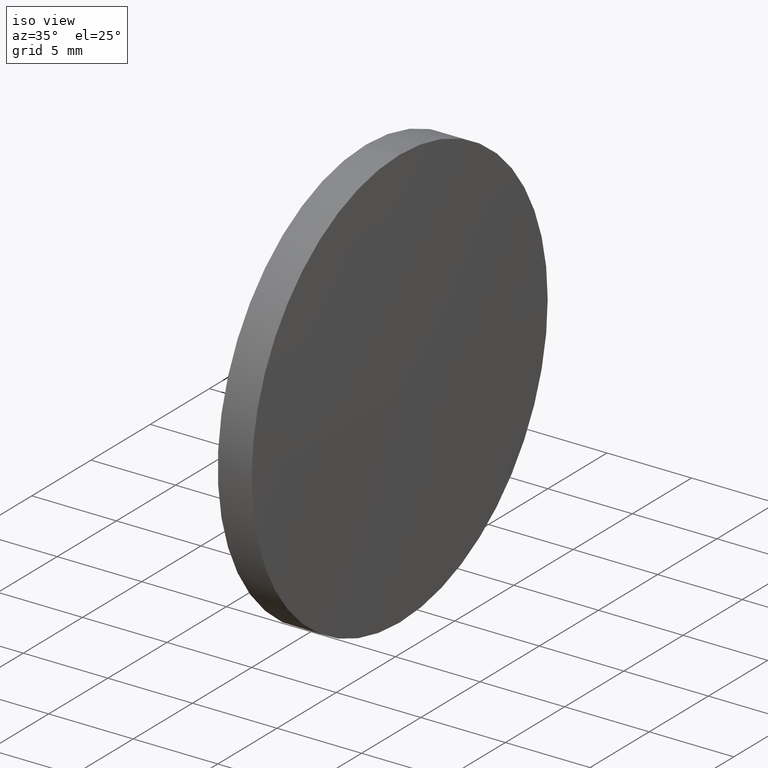
[diagram: clean part render]
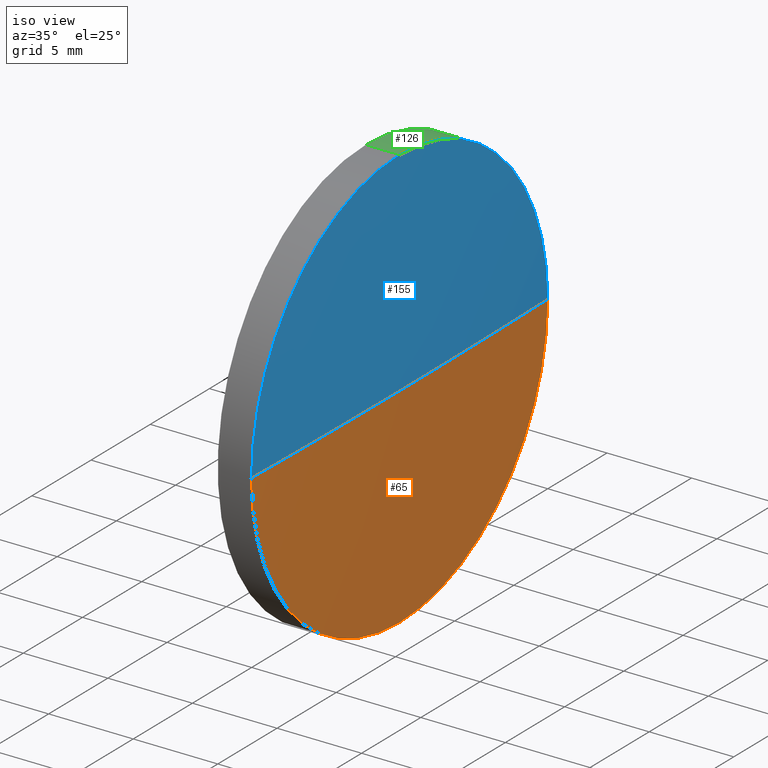
[diagram: same view with three faces highlighted in distinct colors, each labeled with its STEP entity id]
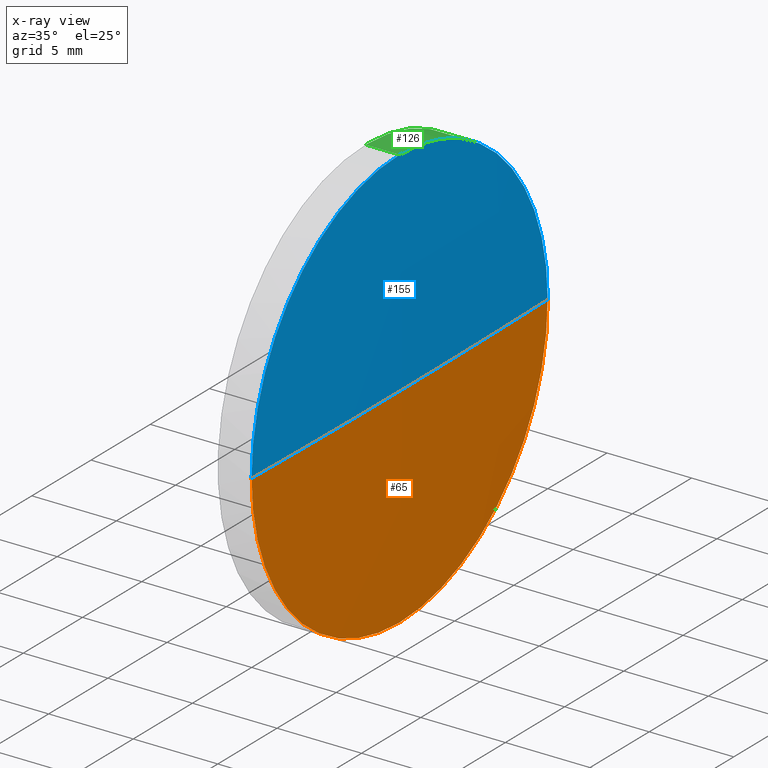
[diagram: x-ray of the same camera — body ghosted, the three highlighted faces saturated]
A machine part, iso view with three faces highlighted in distinct colors.
The next image is the same camera in x-ray (body ghosted, the three faces saturated) — at least one of them is partly hidden behind the body in this view.
Their STEP definitions:

[orange] entity #65 — the highlighted spherical surface has radius 520.908 mm.
#4 = EDGE_CURVE ( 'NONE', #70, #81, #40, .T. ) ;
#11 = ORIENTED_EDGE ( 'NONE', *, *, #129, .F. ) ;
#14 = ORIENTED_EDGE ( 'NONE', *, *, #27, .T. ) ;
#17 = DIRECTION ( 'NONE',  ( 1.000000000000000000, 0.0000000000000000000, 0.0000000000000000000 ) ) ;
#18 = DIRECTION ( 'NONE',  ( -0.0000000000000000000, 0.0000000000000000000, -1.000000000000000000 ) ) ;
#21 = DIRECTION ( 'NONE',  ( 0.0000000000000000000, 0.0000000000000000000, 1.000000000000000000 ) ) ;
#24 = AXIS2_PLACEMENT_3D ( 'NONE', #145, #62, #144 ) ;
#26 = CARTESIAN_POINT ( 'NONE',  ( 428.5777282207968100, 122.3870715266886200, 0.0000000000000000000 ) ) ;
#27 = EDGE_CURVE ( 'NONE', #39, #181, #168, .T. ) ;
#31 = DIRECTION ( 'NONE',  ( -0.0000000000000000000, 0.0000000000000000000, 1.000000000000000000 ) ) ;
#35 = EDGE_LOOP ( 'NONE', ( #11, #14, #77, #92 ) ) ;
#37 = SPHERICAL_SURFACE ( 'NONE', #86, 520.9083333333633200 ) ;
#39 = VERTEX_POINT ( 'NONE', #75 ) ;
#40 = CIRCLE ( 'NONE', #178, 12.49999999999999600 ) ;
#43 = CIRCLE ( 'NONE', #141, 12.49999999999999600 ) ;
#62 = DIRECTION ( 'NONE',  ( 0.0000000000000000000, 1.224646799147353200E-016, -1.000000000000000000 ) ) ;
#65 = ADVANCED_FACE ( 'NONE', ( #109 ), #37, .T. ) ;
#69 = DIRECTION ( 'NONE',  ( -1.000000000000000000, -0.0000000000000000000, -0.0000000000000000000 ) ) ;
#70 = VERTEX_POINT ( 'NONE', #113 ) ;
#74 = CARTESIAN_POINT ( 'NONE',  ( -92.18060511256635400, 122.3870715266859900, 0.0000000000000000000 ) ) ;
#75 = CARTESIAN_POINT ( 'NONE',  ( 428.7277282207969100, 122.3870715266860100, 0.0000000000000000000 ) ) ;
#76 = CARTESIAN_POINT ( 'NONE',  ( 428.5777282207968100, 122.3870715266886200, -12.49999999999999600 ) ) ;
#77 = ORIENTED_EDGE ( 'NONE', *, *, #147, .F. ) ;
#81 = VERTEX_POINT ( 'NONE', #76 ) ;
#86 = AXIS2_PLACEMENT_3D ( 'NONE', #90, #18, #146 ) ;
#89 = DIRECTION ( 'NONE',  ( 0.0000000000000000000, 0.0000000000000000000, 1.000000000000000000 ) ) ;
#90 = CARTESIAN_POINT ( 'NONE',  ( -92.18060511256635400, 122.3870715266859900, 0.0000000000000000000 ) ) ;
#92 = ORIENTED_EDGE ( 'NONE', *, *, #4, .F. ) ;
#96 = CIRCLE ( 'NONE', #110, 520.9083333333633200 ) ;
#109 = FACE_OUTER_BOUND ( 'NONE', #35, .T. ) ;
#110 = AXIS2_PLACEMENT_3D ( 'NONE', #74, #31, #17 ) ;
#113 = CARTESIAN_POINT ( 'NONE',  ( 428.5777282207968700, 134.8870715266888900, 0.0000000000000000000 ) ) ;
#119 = CARTESIAN_POINT ( 'NONE',  ( 428.5777282207968700, 109.8870715266857000, -1.530808498934227000E-015 ) ) ;
#129 = EDGE_CURVE ( 'NONE', #39, #70, #96, .T. ) ;
#132 = CARTESIAN_POINT ( 'NONE',  ( 428.5777282207968100, 122.3870715266886200, 0.0000000000000000000 ) ) ;
#141 = AXIS2_PLACEMENT_3D ( 'NONE', #132, #150, #21 ) ;
#144 = DIRECTION ( 'NONE',  ( 0.0000000000000000000, 1.000000000000000000, 1.224646799147353000E-016 ) ) ;
#145 = CARTESIAN_POINT ( 'NONE',  ( -92.18060511256635400, 122.3870715266859900, 0.0000000000000000000 ) ) ;
#146 = DIRECTION ( 'NONE',  ( 0.0000000000000000000, 1.000000000000000000, 0.0000000000000000000 ) ) ;
#147 = EDGE_CURVE ( 'NONE', #81, #181, #43, .T. ) ;
#150 = DIRECTION ( 'NONE',  ( -1.000000000000000000, -0.0000000000000000000, -0.0000000000000000000 ) ) ;
#168 = CIRCLE ( 'NONE', #24, 520.9083333333633200 ) ;
#178 = AXIS2_PLACEMENT_3D ( 'NONE', #26, #69, #89 ) ;
#181 = VERTEX_POINT ( 'NONE', #119 ) ;

[blue] entity #155 — the highlighted spherical surface has radius 520.908 mm.
#7 = SPHERICAL_SURFACE ( 'NONE', #41, 520.9083333333633200 ) ;
#17 = DIRECTION ( 'NONE',  ( 1.000000000000000000, 0.0000000000000000000, 0.0000000000000000000 ) ) ;
#24 = AXIS2_PLACEMENT_3D ( 'NONE', #145, #62, #144 ) ;
#27 = EDGE_CURVE ( 'NONE', #39, #181, #168, .T. ) ;
#31 = DIRECTION ( 'NONE',  ( -0.0000000000000000000, 0.0000000000000000000, 1.000000000000000000 ) ) ;
#34 = ORIENTED_EDGE ( 'NONE', *, *, #129, .T. ) ;
#39 = VERTEX_POINT ( 'NONE', #75 ) ;
#41 = AXIS2_PLACEMENT_3D ( 'NONE', #115, #121, #50 ) ;
#42 = EDGE_LOOP ( 'NONE', ( #169, #34, #94, #117 ) ) ;
#46 = CARTESIAN_POINT ( 'NONE',  ( 428.5777282207968100, 122.3870715266886200, 0.0000000000000000000 ) ) ;
#50 = DIRECTION ( 'NONE',  ( 0.0000000000000000000, 1.000000000000000000, 0.0000000000000000000 ) ) ;
#57 = EDGE_CURVE ( 'NONE', #83, #70, #73, .T. ) ;
#59 = CARTESIAN_POINT ( 'NONE',  ( 428.5777282207968100, 122.3870715266886200, 0.0000000000000000000 ) ) ;
#62 = DIRECTION ( 'NONE',  ( 0.0000000000000000000, 1.224646799147353200E-016, -1.000000000000000000 ) ) ;
#67 = EDGE_CURVE ( 'NONE', #181, #83, #68, .T. ) ;
#68 = CIRCLE ( 'NONE', #93, 12.49999999999999600 ) ;
#70 = VERTEX_POINT ( 'NONE', #113 ) ;
#73 = CIRCLE ( 'NONE', #158, 12.49999999999999600 ) ;
#74 = CARTESIAN_POINT ( 'NONE',  ( -92.18060511256635400, 122.3870715266859900, 0.0000000000000000000 ) ) ;
#75 = CARTESIAN_POINT ( 'NONE',  ( 428.7277282207969100, 122.3870715266860100, 0.0000000000000000000 ) ) ;
#83 = VERTEX_POINT ( 'NONE', #174 ) ;
#93 = AXIS2_PLACEMENT_3D ( 'NONE', #46, #171, #118 ) ;
#94 = ORIENTED_EDGE ( 'NONE', *, *, #57, .F. ) ;
#96 = CIRCLE ( 'NONE', #110, 520.9083333333633200 ) ;
#103 = DIRECTION ( 'NONE',  ( -1.000000000000000000, -0.0000000000000000000, -0.0000000000000000000 ) ) ;
#110 = AXIS2_PLACEMENT_3D ( 'NONE', #74, #31, #17 ) ;
#113 = CARTESIAN_POINT ( 'NONE',  ( 428.5777282207968700, 134.8870715266888900, 0.0000000000000000000 ) ) ;
#115 = CARTESIAN_POINT ( 'NONE',  ( -92.18060511256635400, 122.3870715266859900, 0.0000000000000000000 ) ) ;
#117 = ORIENTED_EDGE ( 'NONE', *, *, #67, .F. ) ;
#118 = DIRECTION ( 'NONE',  ( 0.0000000000000000000, 0.0000000000000000000, 1.000000000000000000 ) ) ;
#119 = CARTESIAN_POINT ( 'NONE',  ( 428.5777282207968700, 109.8870715266857000, -1.530808498934227000E-015 ) ) ;
#121 = DIRECTION ( 'NONE',  ( -0.0000000000000000000, 0.0000000000000000000, -1.000000000000000000 ) ) ;
#129 = EDGE_CURVE ( 'NONE', #39, #70, #96, .T. ) ;
#130 = DIRECTION ( 'NONE',  ( 0.0000000000000000000, 0.0000000000000000000, 1.000000000000000000 ) ) ;
#144 = DIRECTION ( 'NONE',  ( 0.0000000000000000000, 1.000000000000000000, 1.224646799147353000E-016 ) ) ;
#145 = CARTESIAN_POINT ( 'NONE',  ( -92.18060511256635400, 122.3870715266859900, 0.0000000000000000000 ) ) ;
#155 = ADVANCED_FACE ( 'NONE', ( #173 ), #7, .T. ) ;
#158 = AXIS2_PLACEMENT_3D ( 'NONE', #59, #103, #130 ) ;
#168 = CIRCLE ( 'NONE', #24, 520.9083333333633200 ) ;
#169 = ORIENTED_EDGE ( 'NONE', *, *, #27, .F. ) ;
#171 = DIRECTION ( 'NONE',  ( -1.000000000000000000, -0.0000000000000000000, -0.0000000000000000000 ) ) ;
#173 = FACE_OUTER_BOUND ( 'NONE', #42, .T. ) ;
#174 = CARTESIAN_POINT ( 'NONE',  ( 428.5777282207968100, 122.3870715266886200, 12.49999999999999600 ) ) ;
#181 = VERTEX_POINT ( 'NONE', #119 ) ;

[green] entity #126 — the highlighted cylindrical surface (partial cylindrical patch) has radius 12.5 mm, axis along (-1, -0, -0).
#4 = EDGE_CURVE ( 'NONE', #70, #81, #40, .T. ) ;
#5 = CARTESIAN_POINT ( 'NONE',  ( 421.8356969789069200, 122.3870715266886200, 12.49999999999999600 ) ) ;
#12 = EDGE_CURVE ( 'NONE', #182, #137, #157, .T. ) ;
#13 = EDGE_CURVE ( 'NONE', #83, #182, #105, .T. ) ;
#15 = DIRECTION ( 'NONE',  ( -1.000000000000000000, -0.0000000000000000000, -0.0000000000000000000 ) ) ;
#25 = CYLINDRICAL_SURFACE ( 'NONE', #160, 12.49999999999999600 ) ;
#26 = CARTESIAN_POINT ( 'NONE',  ( 428.5777282207968100, 122.3870715266886200, 0.0000000000000000000 ) ) ;
#28 = DIRECTION ( 'NONE',  ( -1.000000000000000000, -0.0000000000000000000, -0.0000000000000000000 ) ) ;
#40 = CIRCLE ( 'NONE', #178, 12.49999999999999600 ) ;
#45 = EDGE_CURVE ( 'NONE', #81, #137, #85, .T. ) ;
#57 = EDGE_CURVE ( 'NONE', #83, #70, #73, .T. ) ;
#58 = CARTESIAN_POINT ( 'NONE',  ( 426.5777282207968100, 122.3870715266886200, -12.49999999999999600 ) ) ;
#59 = CARTESIAN_POINT ( 'NONE',  ( 428.5777282207968100, 122.3870715266886200, 0.0000000000000000000 ) ) ;
#64 = CARTESIAN_POINT ( 'NONE',  ( 426.5777282207968100, 122.3870715266886200, 12.49999999999999600 ) ) ;
#69 = DIRECTION ( 'NONE',  ( -1.000000000000000000, -0.0000000000000000000, -0.0000000000000000000 ) ) ;
#70 = VERTEX_POINT ( 'NONE', #113 ) ;
#71 = EDGE_LOOP ( 'NONE', ( #125, #95, #161, #136, #140 ) ) ;
#73 = CIRCLE ( 'NONE', #158, 12.49999999999999600 ) ;
#76 = CARTESIAN_POINT ( 'NONE',  ( 428.5777282207968100, 122.3870715266886200, -12.49999999999999600 ) ) ;
#81 = VERTEX_POINT ( 'NONE', #76 ) ;
#83 = VERTEX_POINT ( 'NONE', #174 ) ;
#85 = LINE ( 'NONE', #131, #185 ) ;
#89 = DIRECTION ( 'NONE',  ( 0.0000000000000000000, 0.0000000000000000000, 1.000000000000000000 ) ) ;
#95 = ORIENTED_EDGE ( 'NONE', *, *, #45, .T. ) ;
#100 = DIRECTION ( 'NONE',  ( -1.000000000000000000, -0.0000000000000000000, -0.0000000000000000000 ) ) ;
#101 = CARTESIAN_POINT ( 'NONE',  ( 426.5777282207968100, 122.3870715266886200, 0.0000000000000000000 ) ) ;
#102 = DIRECTION ( 'NONE',  ( 0.0000000000000000000, 0.0000000000000000000, 1.000000000000000000 ) ) ;
#103 = DIRECTION ( 'NONE',  ( -1.000000000000000000, -0.0000000000000000000, -0.0000000000000000000 ) ) ;
#105 = LINE ( 'NONE', #5, #108 ) ;
#108 = VECTOR ( 'NONE', #28, 1000.000000000000000 ) ;
#113 = CARTESIAN_POINT ( 'NONE',  ( 428.5777282207968700, 134.8870715266888900, 0.0000000000000000000 ) ) ;
#125 = ORIENTED_EDGE ( 'NONE', *, *, #4, .T. ) ;
#126 = ADVANCED_FACE ( 'NONE', ( #180 ), #25, .T. ) ;
#130 = DIRECTION ( 'NONE',  ( 0.0000000000000000000, 0.0000000000000000000, 1.000000000000000000 ) ) ;
#131 = CARTESIAN_POINT ( 'NONE',  ( 421.8356969789069200, 122.3870715266886200, -12.49999999999999600 ) ) ;
#136 = ORIENTED_EDGE ( 'NONE', *, *, #13, .F. ) ;
#137 = VERTEX_POINT ( 'NONE', #58 ) ;
#140 = ORIENTED_EDGE ( 'NONE', *, *, #57, .T. ) ;
#151 = AXIS2_PLACEMENT_3D ( 'NONE', #101, #175, #102 ) ;
#157 = CIRCLE ( 'NONE', #151, 12.49999999999999600 ) ;
#158 = AXIS2_PLACEMENT_3D ( 'NONE', #59, #103, #130 ) ;
#159 = CARTESIAN_POINT ( 'NONE',  ( 421.8356969789069200, 122.3870715266886200, 0.0000000000000000000 ) ) ;
#160 = AXIS2_PLACEMENT_3D ( 'NONE', #159, #100, #163 ) ;
#161 = ORIENTED_EDGE ( 'NONE', *, *, #12, .F. ) ;
#163 = DIRECTION ( 'NONE',  ( 0.0000000000000000000, 0.0000000000000000000, 1.000000000000000000 ) ) ;
#174 = CARTESIAN_POINT ( 'NONE',  ( 428.5777282207968100, 122.3870715266886200, 12.49999999999999600 ) ) ;
#175 = DIRECTION ( 'NONE',  ( -1.000000000000000000, -0.0000000000000000000, -0.0000000000000000000 ) ) ;
#178 = AXIS2_PLACEMENT_3D ( 'NONE', #26, #69, #89 ) ;
#180 = FACE_OUTER_BOUND ( 'NONE', #71, .T. ) ;
#182 = VERTEX_POINT ( 'NONE', #64 ) ;
#185 = VECTOR ( 'NONE', #15, 1000.000000000000000 ) ;